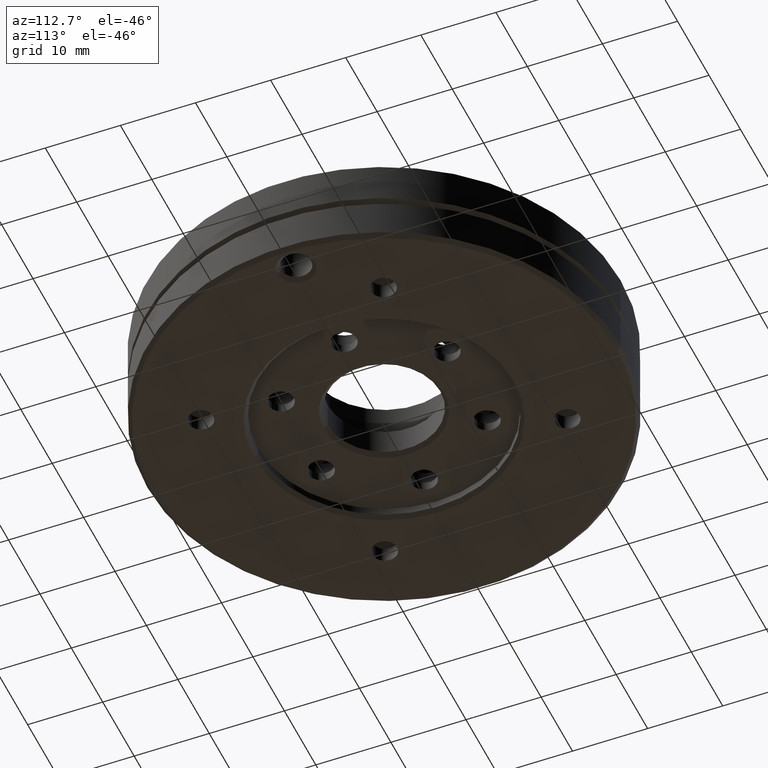
[diagram: clean part render]
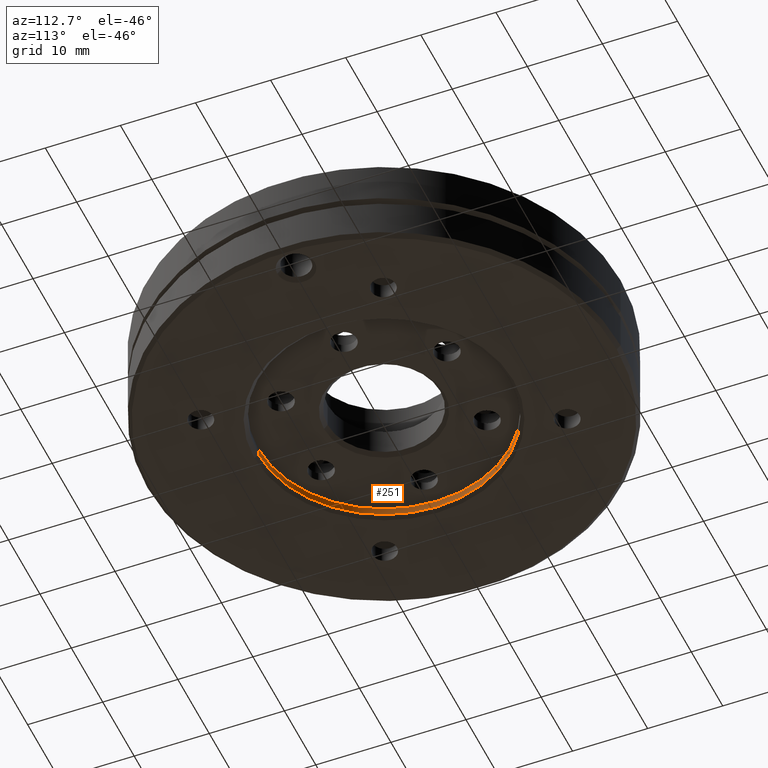
[diagram: same view with one face highlighted and labeled with its STEP entity id]
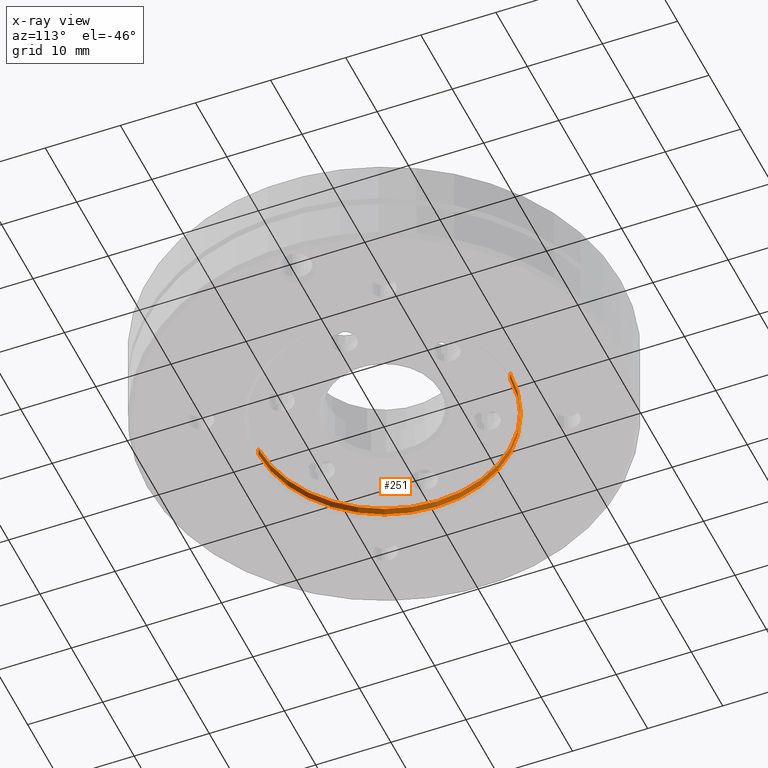
[diagram: x-ray of the same camera — body ghosted, the highlighted face saturated]
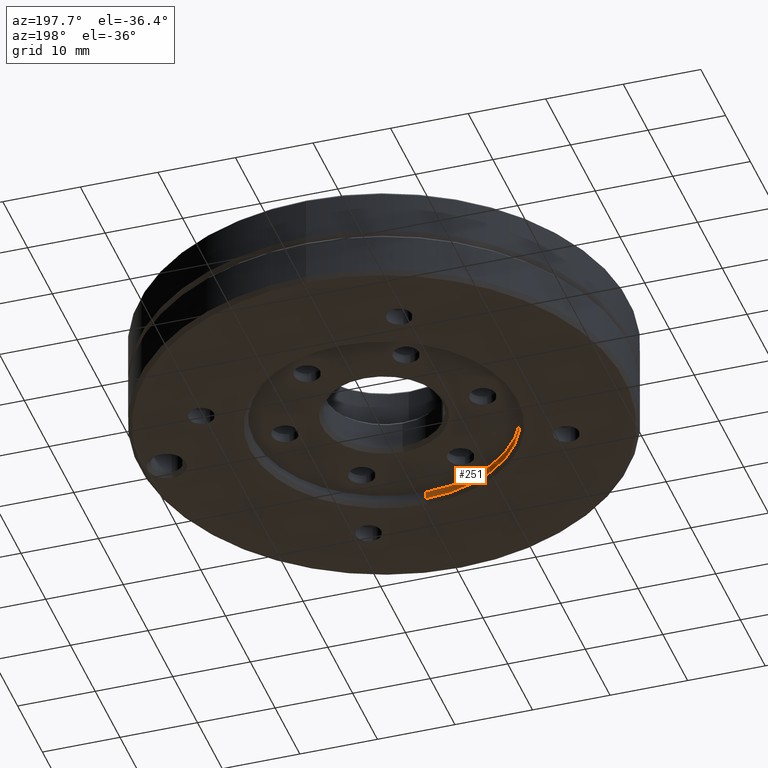
[diagram: same view with one face highlighted and labeled with its STEP entity id]
A machine part, auxiliary view. The second image highlights one B-rep face of the part: STEP entity #251.
The next image is the same camera in x-ray: the body ghosted, the highlighted face saturated — about 0% of this face is hidden behind the body in this view.
A second angle (auxiliary view) of the same face is appended — the face is thin or edge-on in the first view.
In plain terms, the highlighted cylindrical surface (partial cylindrical patch) has radius 16.75 mm, axis along (0, 0, -1).
Its self-contained STEP definition (entity closure, byte-faithful):
#113 = DIRECTION ( 'NONE',  ( -9.367506770274758310E-15, -1.000000000000000000, -1.657049290485305361E-15 ) ) ;
#171 = CARTESIAN_POINT ( 'NONE',  ( -1.589428308339863089E-13, -16.74999999999999289, -4.500000000000028422 ) ) ;
#251 = ADVANCED_FACE ( 'NONE', ( #2702 ), #4255, .F. ) ;
#269 = DIRECTION ( 'NONE',  ( 8.357693029993984519E-16, 1.654786224869864480E-15, -1.000000000000000000 ) ) ;
#547 = CARTESIAN_POINT ( 'NONE',  ( -1.589428308339863089E-13, -16.74999999999999289, -5.500000000000034639 ) ) ;
#549 = EDGE_CURVE ( 'NONE', #2982, #2156, #6315, .T. ) ;
#1226 = CARTESIAN_POINT ( 'NONE',  ( 1.528173625816462871E-13, 16.75000000000000711, -5.499999999999978684 ) ) ;
#1366 = LINE ( 'NONE', #2381, #2314 ) ;
#1589 = LINE ( 'NONE', #3651, #1814 ) ;
#1625 = DIRECTION ( 'NONE',  ( 9.367506770274758310E-15, 1.000000000000000000, 1.657049290485305361E-15 ) ) ;
#1728 = CARTESIAN_POINT ( 'NONE',  ( -4.506260471955611325E-15, 5.324076304590836191E-15, -4.500000000000000888 ) ) ;
#1814 = VECTOR ( 'NONE', #4794, 1000.000000000000000 ) ;
#2156 = VERTEX_POINT ( 'NONE', #171 ) ;
#2175 = VERTEX_POINT ( 'NONE', #1226 ) ;
#2198 = EDGE_CURVE ( 'NONE', #2156, #3759, #1366, .T. ) ;
#2314 = VECTOR ( 'NONE', #269, 1000.000000000000000 ) ;
#2381 = CARTESIAN_POINT ( 'NONE',  ( -1.593607154854862746E-13, -16.75000000000002132, -4.500000000000028422 ) ) ;
#2702 = FACE_OUTER_BOUND ( 'NONE', #5159, .T. ) ;
#2982 = VERTEX_POINT ( 'NONE', #4149 ) ;
#3144 = DIRECTION ( 'NONE',  ( 8.357693029993984519E-16, 1.654786224869864480E-15, -1.000000000000000000 ) ) ;
#3651 = CARTESIAN_POINT ( 'NONE',  ( 1.523994779301468515E-13, 16.75000000000003553, -4.499999999999972466 ) ) ;
#3700 = CARTESIAN_POINT ( 'NONE',  ( -3.670491168956210802E-15, 6.978862529460717631E-15, -5.500000000000006217 ) ) ;
#3759 = VERTEX_POINT ( 'NONE', #547 ) ;
#3778 = CIRCLE ( 'NONE', #5496, 16.75000000000002842 ) ;
#4149 = CARTESIAN_POINT ( 'NONE',  ( 1.528173625816462618E-13, 16.75000000000000711, -4.499999999999972466 ) ) ;
#4183 = EDGE_CURVE ( 'NONE', #2982, #2175, #1589, .T. ) ;
#4255 = CYLINDRICAL_SURFACE ( 'NONE', #5692, 16.75000000000002842 ) ;
#4381 = EDGE_CURVE ( 'NONE', #3759, #2175, #3778, .T. ) ;
#4625 = CARTESIAN_POINT ( 'NONE',  ( -4.506260471955611325E-15, 5.324076304590836191E-15, -4.500000000000000888 ) ) ;
#4794 = DIRECTION ( 'NONE',  ( 8.357693029993984519E-16, 1.654786224869864480E-15, -1.000000000000000000 ) ) ;
#5098 = DIRECTION ( 'NONE',  ( -8.357693029993984519E-16, -1.654786224869864480E-15, 1.000000000000000000 ) ) ;
#5103 = ORIENTED_EDGE ( 'NONE', *, *, #4381, .T. ) ;
#5106 = ORIENTED_EDGE ( 'NONE', *, *, #2198, .T. ) ;
#5159 = EDGE_LOOP ( 'NONE', ( #5426, #5106, #5103, #5503 ) ) ;
#5426 = ORIENTED_EDGE ( 'NONE', *, *, #549, .T. ) ;
#5496 = AXIS2_PLACEMENT_3D ( 'NONE', #3700, #5825, #113 ) ;
#5503 = ORIENTED_EDGE ( 'NONE', *, *, #4183, .F. ) ;
#5692 = AXIS2_PLACEMENT_3D ( 'NONE', #1728, #3144, #1625 ) ;
#5825 = DIRECTION ( 'NONE',  ( 8.357693029993984519E-16, 1.654786224869864480E-15, -1.000000000000000000 ) ) ;
#6073 = DIRECTION ( 'NONE',  ( -9.367506770274758310E-15, -1.000000000000000000, -1.657049290485305361E-15 ) ) ;
#6315 = CIRCLE ( 'NONE', #6642, 16.75000000000002842 ) ;
#6642 = AXIS2_PLACEMENT_3D ( 'NONE', #4625, #5098, #6073 ) ;